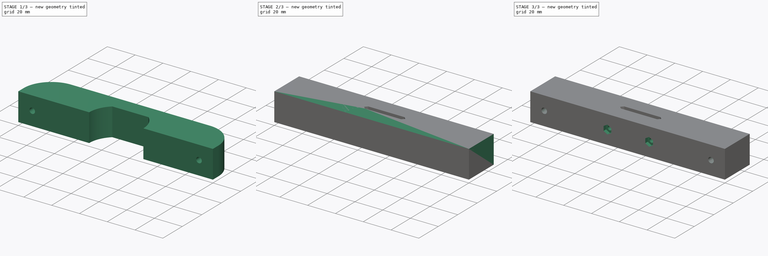
[diagram: build sequence overview — one tinted view per stage of 3, left to right]
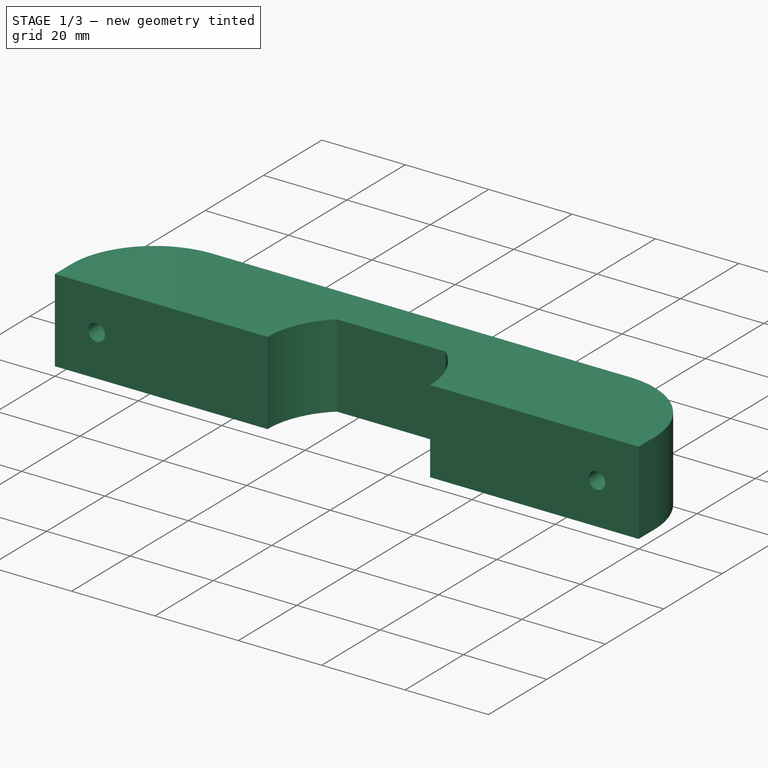
[diagram: stage 1 of 3 — iso view after this stage's code; geometry added in this stage tinted green]
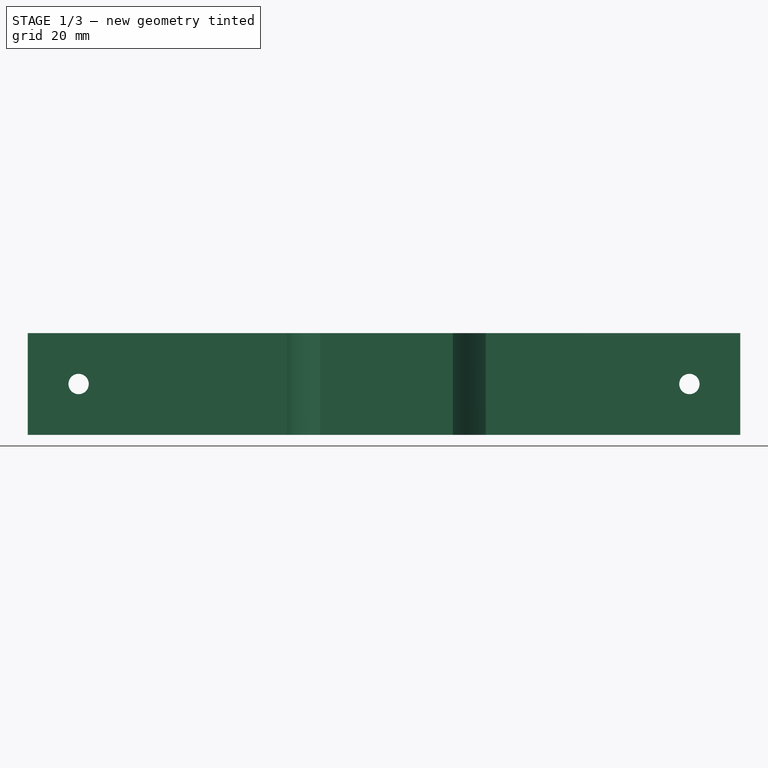
[diagram: stage 1 of 3 — front view after this stage's code; geometry added in this stage tinted green]
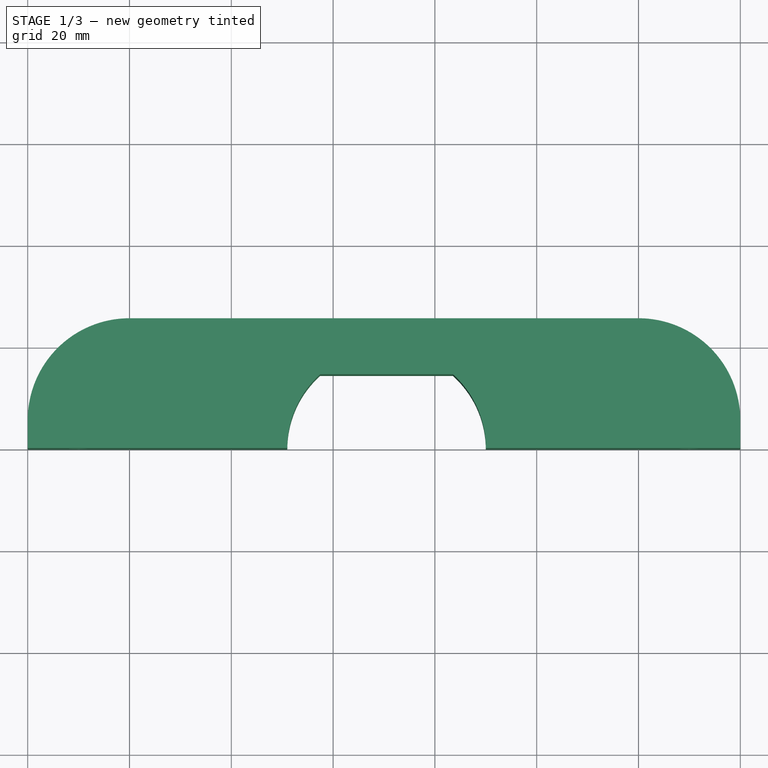
[diagram: stage 1 of 3 — top view after this stage's code; geometry added in this stage tinted green]
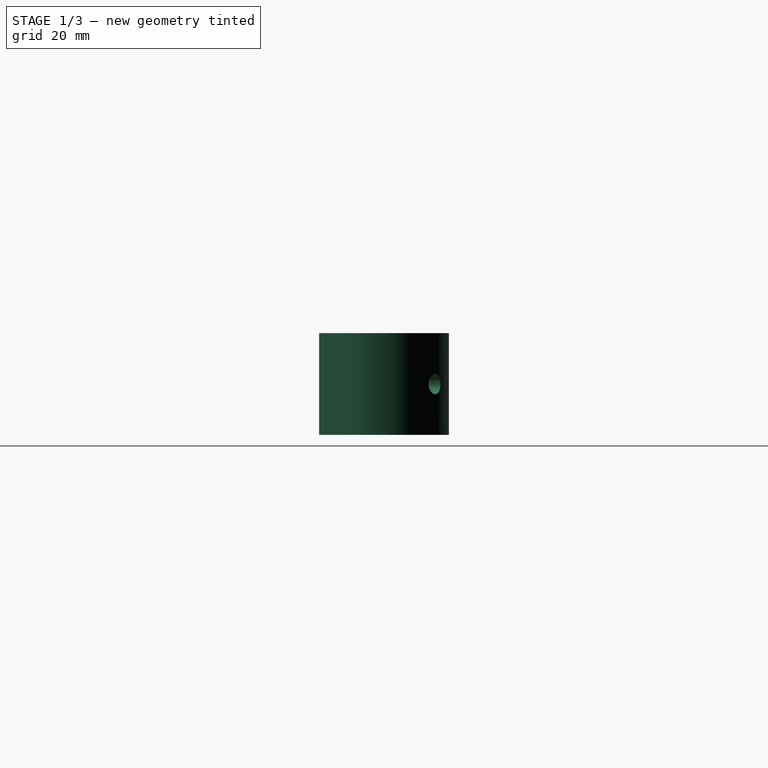
[diagram: stage 1 of 3 — right view after this stage's code; geometry added in this stage tinted green]
FCSTD DOCUMENT  (FreeCAD 0.19R)
Label: motor_mount1
License: All rights reserved
LicenseURL: http://en.wikipedia.org/wiki/All_rights_reserved
objects: Sketcher::SketchObject×7, PartDesign::Pocket×5, PartDesign::Pad×2, PartDesign::Body×2, PartDesign::Fillet×1
note: 24 computed .brp shape members not serialized (recipe doc carries the construction recipe); baked Part::Feature solids carry a one-line shape summary decoded from their .brp

FEATURE [PartDesign::Body] Body
  Group = -> [Sketch,Pad,Sketch001,Pocket,Sketch002,Pocket001,Sketch003,Pocket002]
  Origin = -> Origin
  Placement = pos=(0,-25.5,0) rot=(0,0,1;0rad)
  Tip = -> Pocket002
  expr: .Placement.Base.y = -Sketch.Constraints.height_a
FEATURE [Sketcher::SketchObject] Sketch004
  MapMode = 5
  Support = -> [XY_Plane001]
  sketch-geometry (8):
    g0: LineSegment StartX=0 StartY=0 StartZ=0 EndX=51 EndY=2.4e-15 EndZ=0
    g1: LineSegment StartX=140 StartY=0 StartZ=0 EndX=140 EndY=25.5 EndZ=0
    g2: LineSegment StartX=140 StartY=25.5 StartZ=0 EndX=0 EndY=25.5 EndZ=0
    g3: LineSegment StartX=0 StartY=25.5 StartZ=0 EndX=0 EndY=0 EndZ=0
    g4: LineSegment StartX=83.5384 StartY=14.5 StartZ=0 EndX=57.4616 EndY=14.5 EndZ=0
    g5: ArcOfCircle CenterX=70.5 CenterY=0 CenterZ=0 NormalX=0 NormalY=0 NormalZ=1 AngleXU=0 Radius=19.5 StartAngle=0 EndAngle=0.838423
    g6: LineSegment StartX=90 StartY=0 StartZ=0 EndX=140 EndY=0 EndZ=0
    g7: ArcOfCircle CenterX=70.5 CenterY=0 CenterZ=0 NormalX=0 NormalY=0 NormalZ=1 AngleXU=0 Radius=19.5 StartAngle=2.30317 EndAngle=3.14159
  constraints (23):
    c: Coincident(g-1,g0)
    c: PointOnObject(g6,g-1)
    c: Coincident(g6,g1)
    c: Vertical(g1)
    c: Coincident(g1,g2)
    c: Horizontal(g2)
    c: Coincident(g2,g3)
    c: Vertical(g3)
    c: Horizontal(g4)
    c: Coincident(g6,g5)
    c: Tangent(g0,g6)
    c: Coincident(g0,g7)
    c: PointOnObject(g5,g-1)
    c: DistanceX(g2,g2) = 140
    c: DistanceX(g6,g6) = 50
    c: DistanceX(g0,g0) = 51
    c: Equal(g5,g7)
    c: Coincident(g5,g4)
    c: Coincident(g7,g4)
    c: Coincident(g5,g7)
    c: DistanceY(g3,g3) = 25.5
    c: DistanceY(g4,g2) = 11
    c: Coincident(g3,g0)
FEATURE [PartDesign::Pad] Pad001
  Length = 20
  Length2 = 100
  Midplane = true
  Profile = -> Sketch004
  Type = 0
FEATURE [PartDesign::Fillet] Fillet
  Base = -> Pad001 [Edge8,Edge5]
  BaseFeature = -> Pad001
  Radius = 20
FEATURE [Sketcher::SketchObject] Sketch005
  MapMode = 5
  Placement = pos=(0,0,0) rot=(1,0,0;1.5708rad)
  Support = -> [XZ_Plane001]
  sketch-geometry (2):
    g0: Circle CenterX=10 CenterY=0 CenterZ=0 NormalX=0 NormalY=0 NormalZ=1 AngleXU=0 Radius=2
    g1: Circle CenterX=130 CenterY=0 CenterZ=0 NormalX=0 NormalY=0 NormalZ=1 AngleXU=0 Radius=2
  constraints (6):
    c: PointOnObject(g0,g-1)
    c: PointOnObject(g1,g-1)
    c: Equal(g0,g1)
    c: Diameter(g0) = 4
    c: DistanceX(g-1,g0) = 10
    c: DistanceX(g-1,g1) = 130
FEATURE [PartDesign::Pocket] Pocket003
  BaseFeature = -> Fillet
  Length = 0
  Length2 = 100
  Profile = -> Sketch005
  Type = 3
  UpToFace = -> Fillet [Face6]
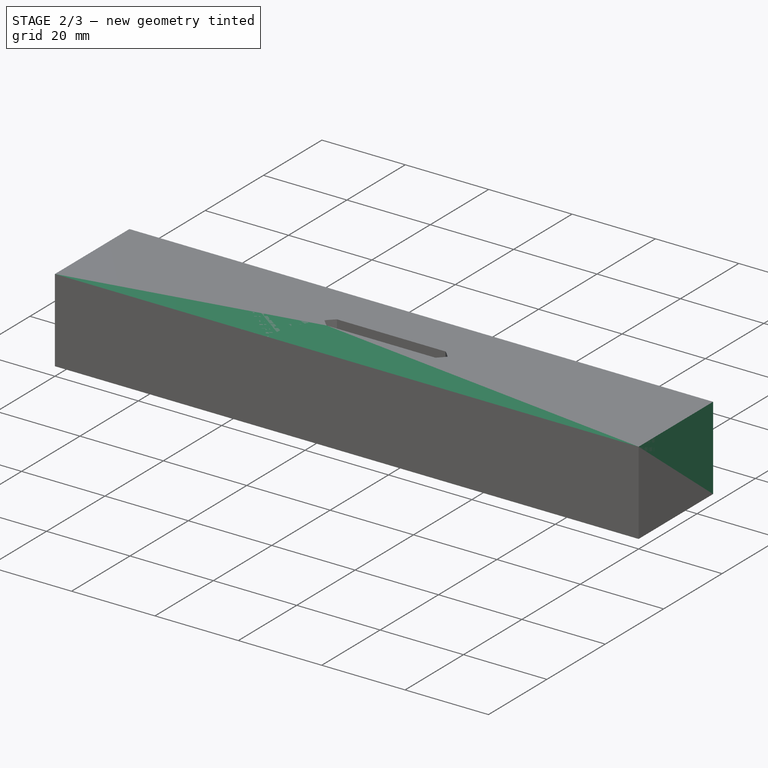
[diagram: stage 2 of 3 — iso view after this stage's code; geometry added in this stage tinted green]
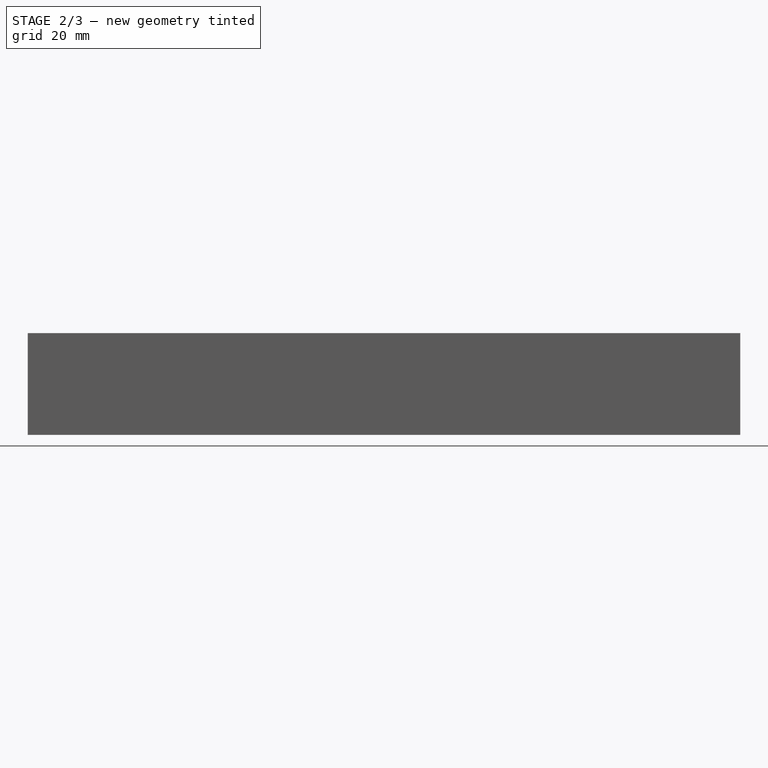
[diagram: stage 2 of 3 — front view after this stage's code; geometry added in this stage tinted green]
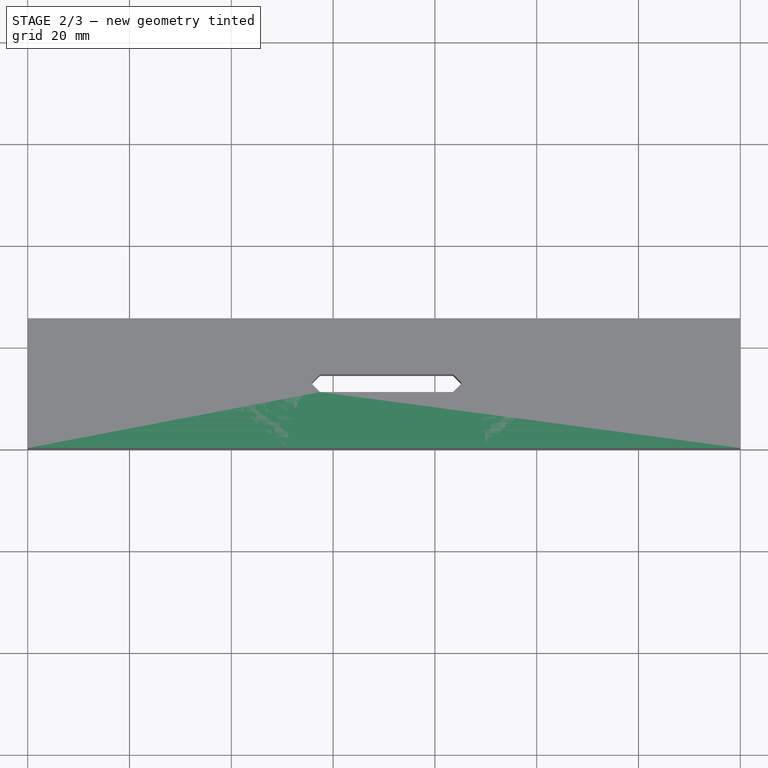
[diagram: stage 2 of 3 — top view after this stage's code; geometry added in this stage tinted green]
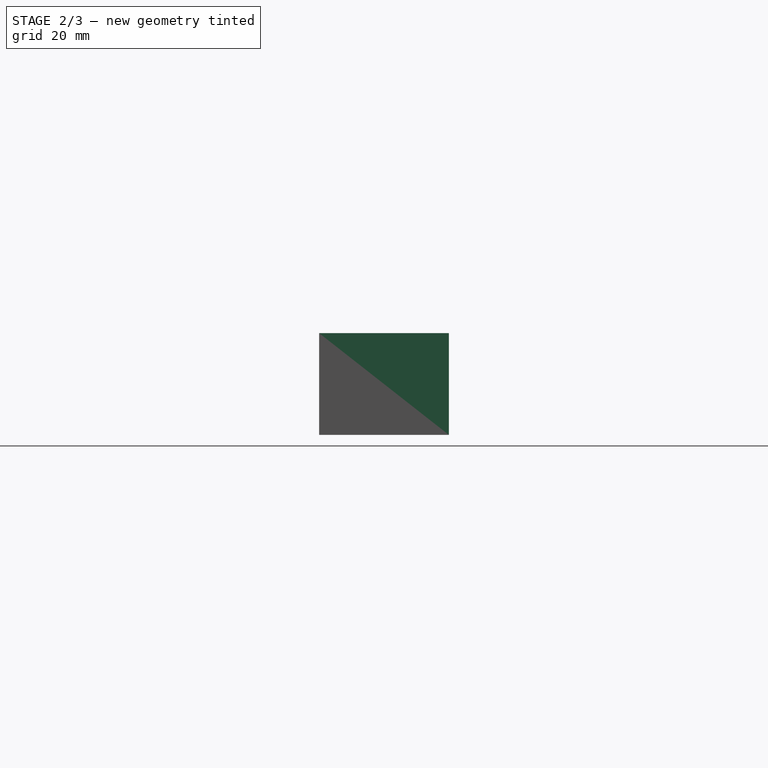
[diagram: stage 2 of 3 — right view after this stage's code; geometry added in this stage tinted green]
FEATURE [Sketcher::SketchObject] Sketch
  MapMode = 5
  Support = -> [XY_Plane]
  sketch-geometry (8):
    g0: LineSegment StartX=0 StartY=0 StartZ=0 EndX=140 EndY=0 EndZ=0
    g1: LineSegment StartX=140 StartY=0 StartZ=0 EndX=140 EndY=25.5 EndZ=0
    g2: LineSegment StartX=140 StartY=25.5 StartZ=0 EndX=90 EndY=25.5 EndZ=0
    g3: LineSegment StartX=51 StartY=25.5 StartZ=0 EndX=0 EndY=25.5 EndZ=0
    g4: LineSegment StartX=0 StartY=25.5 StartZ=0 EndX=0 EndY=0 EndZ=0
    g5: LineSegment StartX=83.5384 StartY=11 StartZ=0 EndX=57.4616 EndY=11 EndZ=0
    g6: ArcOfCircle CenterX=70.5 CenterY=25.5 CenterZ=0 NormalX=0 NormalY=0 NormalZ=1 AngleXU=0 Radius=19.5 StartAngle=3.14159 EndAngle=3.98002
    g7: ArcOfCircle CenterX=70.5 CenterY=25.5 CenterZ=0 NormalX=0 NormalY=0 NormalZ=1 AngleXU=0 Radius=19.5 StartAngle=5.44476 EndAngle=6.28319
  constraints (24):
    c: Coincident(g-1,g0)
    c: Horizontal(g0)
    c: Coincident(g0,g1)
    c: Vertical(g1)
    c: Coincident(g1,g2)
    c: Horizontal(g2)
    c: Horizontal(g3)
    c: Coincident(g3,g4)
    c: Coincident(g4,g0)
    c: Horizontal(g5)
    c: Vertical(g4)
    c: Horizontal(g1,g3)
    c: DistanceX(g0,g0) = 140
    c: Coincident(g6,g3)
    c: Coincident(g7,g2)
    c: Horizontal(g6,g3)
    c: DistanceX(g2,g2) = 50
    c: DistanceX(g3,g3) = 51
    c: DistanceY(g0,g1) = 25.5  'height_a'
    c: Equal(g6,g7)
    c: Coincident(g6,g7)
    c: Coincident(g5,g6)
    c: Coincident(g5,g7)
    c: DistanceY(g0,g5) = 11
FEATURE [PartDesign::Pad] Pad
  Length = 20
  Length2 = 100
  Midplane = true
  Profile = -> Sketch
  Type = 0
FEATURE [Sketcher::SketchObject] Sketch006
  AttachmentOffset = pos=(0,0,0) rot=(0,0,1;3.14159rad)
  MapMode = 5
  Placement = pos=(0,25.5,0) rot=(1,0,0;4.71239rad)
  Support = -> [Pocket003]
  sketch-geometry (2):
    g0: Circle CenterX=10 CenterY=0 CenterZ=0 NormalX=0 NormalY=0 NormalZ=1 AngleXU=0 Radius=3.5
    g1: Circle CenterX=130 CenterY=0 CenterZ=0 NormalX=0 NormalY=0 NormalZ=1 AngleXU=0 Radius=3.5
  constraints (6):
    c: PointOnObject(g0,g-1)
    c: PointOnObject(g1,g-1)
    c: Equal(g0,g1)
    c: Diameter(g0) = 7
    c: DistanceX(g-1,g0) = 10
    c: DistanceX(g-1,g1) = 130
FEATURE [PartDesign::Pocket] Pocket004
  BaseFeature = -> Pocket003
  Length = 18
  Length2 = 100
  Profile = -> Sketch006
  Type = 0
FEATURE [PartDesign::Body] Body001
  Group = -> [Sketch004,Pad001,Fillet,Sketch005,Pocket003,Sketch006,Pocket004]
  Origin = -> Origin001
  Tip = -> Pocket004
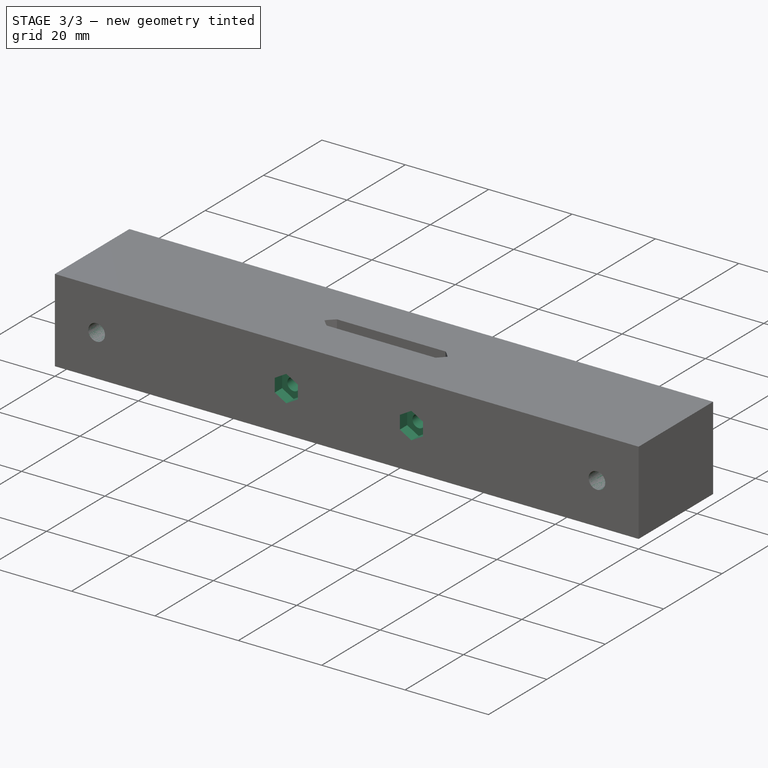
[diagram: stage 3 of 3 — iso view after this stage's code; geometry added in this stage tinted green]
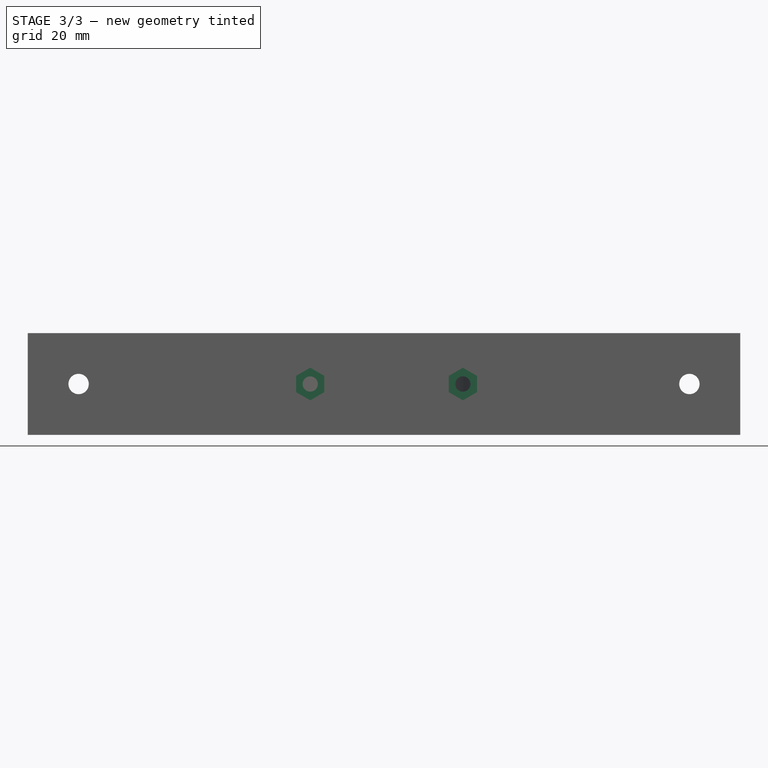
[diagram: stage 3 of 3 — front view after this stage's code; geometry added in this stage tinted green]
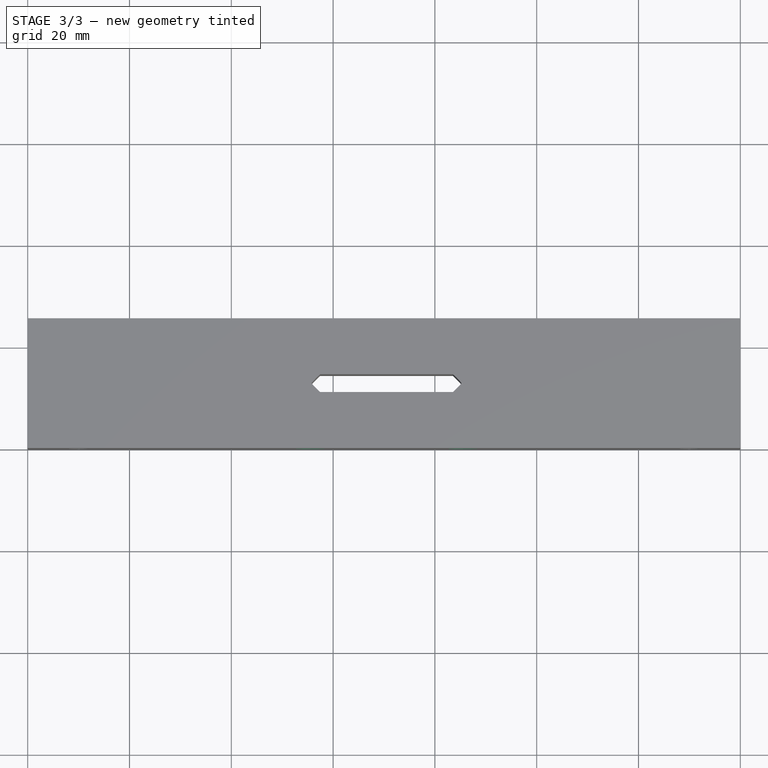
[diagram: stage 3 of 3 — top view after this stage's code; geometry added in this stage tinted green]
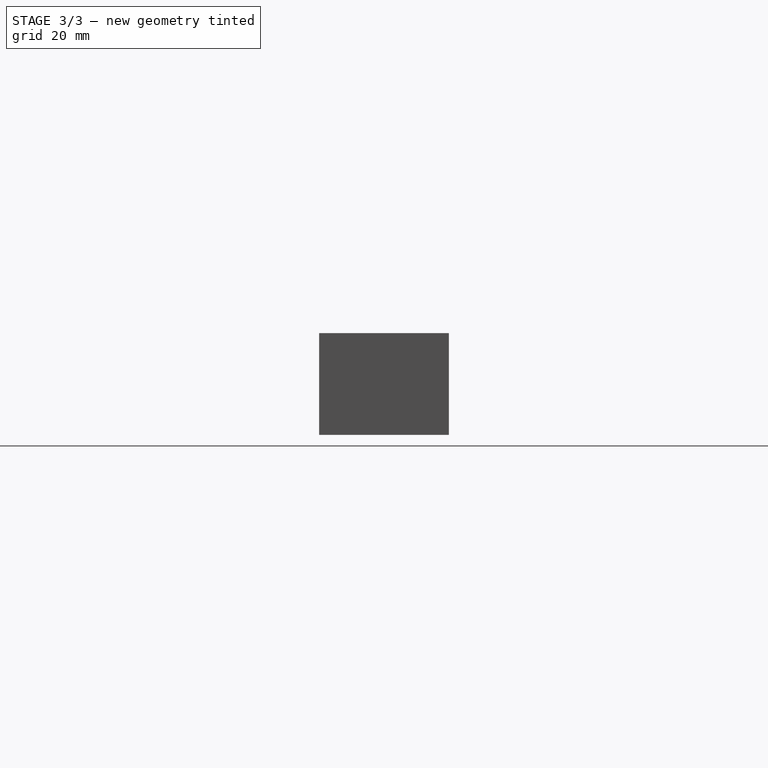
[diagram: stage 3 of 3 — right view after this stage's code; geometry added in this stage tinted green]
FEATURE [Sketcher::SketchObject] Sketch001
  MapMode = 5
  Placement = pos=(0,0,0) rot=(1,0,0;1.5708rad)
  Support = -> [XZ_Plane]
  sketch-geometry (4):
    g0: Circle CenterX=10 CenterY=0 CenterZ=0 NormalX=0 NormalY=0 NormalZ=1 AngleXU=0 Radius=2
    g1: Circle CenterX=130 CenterY=0 CenterZ=0 NormalX=0 NormalY=0 NormalZ=1 AngleXU=0 Radius=2
    g2: Circle CenterX=55.5 CenterY=0 CenterZ=0 NormalX=0 NormalY=0 NormalZ=1 AngleXU=0 Radius=1.5
    g3: Circle CenterX=85.5 CenterY=0 CenterZ=0 NormalX=0 NormalY=0 NormalZ=1 AngleXU=0 Radius=1.5
  constraints (12):
    c: PointOnObject(g0,g-1)
    c: PointOnObject(g1,g-1)
    c: PointOnObject(g2,g-1)
    c: PointOnObject(g3,g-1)
    c: Equal(g0,g1)
    c: Equal(g2,g3)
    c: DistanceX(g-1,g0) = 10
    c: Diameter(g0) = 4
    c: Diameter(g2) = 3
    c: DistanceX(g-1,g1) = 130  'range_c'
    c: DistanceX(g-1,g2) = 55.5  'range_a'
    c: DistanceX(g2,g3) = 30  'range_b'
FEATURE [PartDesign::Pocket] Pocket
  BaseFeature = -> Pad
  Length = 0
  Length2 = 100
  Profile = -> Sketch001
  Type = 3
  UpToFace = -> Pad [Face1]
FEATURE [Sketcher::SketchObject] Sketch002
  MapMode = 5
  Placement = pos=(0,0,0) rot=(1,0,0;1.5708rad)
  Support = -> [XZ_Plane]
  expr: Constraints[38] = Sketch001.Constraints.range_b
  expr: Constraints[37] = Sketch001.Constraints.range_a
  sketch-geometry (14):
    g0: LineSegment StartX=85.5 StartY=-3.2 StartZ=0 EndX=88.2713 EndY=-1.6 EndZ=0
    g1: LineSegment StartX=88.2713 StartY=-1.6 StartZ=0 EndX=88.2713 EndY=1.6 EndZ=0
    g2: LineSegment StartX=88.2713 StartY=1.6 StartZ=0 EndX=85.5 EndY=3.2 EndZ=0
    g3: LineSegment StartX=85.5 StartY=3.2 StartZ=0 EndX=82.7287 EndY=1.6 EndZ=0
    g4: LineSegment StartX=82.7287 StartY=1.6 StartZ=0 EndX=82.7287 EndY=-1.6 EndZ=0
    g5: LineSegment StartX=82.7287 StartY=-1.6 StartZ=0 EndX=85.5 EndY=-3.2 EndZ=0
    g6: Circle [constr] CenterX=85.5 CenterY=0 CenterZ=0 NormalX=0 NormalY=0 NormalZ=1 AngleXU=0 Radius=3.2
    g7: LineSegment StartX=52.7287 StartY=-1.6 StartZ=0 EndX=55.5 EndY=-3.2 EndZ=0
    g8: LineSegment StartX=55.5 StartY=-3.2 StartZ=0 EndX=58.2713 EndY=-1.6 EndZ=0
    g9: LineSegment StartX=58.2713 StartY=-1.6 StartZ=0 EndX=58.2713 EndY=1.6 EndZ=0
    g10: LineSegment StartX=58.2713 StartY=1.6 StartZ=0 EndX=55.5 EndY=3.2 EndZ=0
    g11: LineSegment StartX=55.5 StartY=3.2 StartZ=0 EndX=52.7287 EndY=1.6 EndZ=0
    g12: LineSegment StartX=52.7287 StartY=1.6 StartZ=0 EndX=52.7287 EndY=-1.6 EndZ=0
    g13: Circle [constr] CenterX=55.5 CenterY=0 CenterZ=0 NormalX=0 NormalY=0 NormalZ=1 AngleXU=0 Radius=3.2
  constraints (34):
    c: Coincident(g0,g1)
    c: Coincident(g1,g2)
    c: Coincident(g2,g3)
    c: Coincident(g3,g4)
    c: Coincident(g4,g5)
    c: Coincident(g5,g0)
    c: Equal(g0, g1-g5) x5
    c: PointOnObject(g0,g6)
    c: PointOnObject(g1,g6)
    c: PointOnObject(g2,g6)
    c: PointOnObject(g3,g6)
    c: PointOnObject(g4,g6)
    c: PointOnObject(g5,g6)
    c: PointOnObject(g6,g-1)
    c: Coincident(g7,g8)
    c: Coincident(g8,g9)
    c: Coincident(g9,g10)
    c: Coincident(g10,g11)
    c: Coincident(g11,g12)
    c: Coincident(g12,g7)
    c: Equal(g7, g8-g12) x5
    c: PointOnObject(g7,g13)
    c: PointOnObject(g8,g13)
    c: PointOnObject(g9,g13)
    c: PointOnObject(g10,g13)
    c: PointOnObject(g11,g13)
    c: PointOnObject(g12,g13)
    c: PointOnObject(g13,g-1)
    c: Diameter(g13) = 6.4
    c: DistanceX(g-1,g13) = 55.5
    c: DistanceX(g13,g6) = 30
    c: Parallel(g12,g-2)
    c: Parallel(g4,g-2)
    c: Equal(g13,g6)
FEATURE [PartDesign::Pocket] Pocket001
  BaseFeature = -> Pocket
  Length = 2.5
  Length2 = 100
  Profile = -> Sketch002
  Type = 0
FEATURE [Sketcher::SketchObject] Sketch003
  AttachmentOffset = pos=(0,0,0) rot=(0,0,1;3.14159rad)
  MapMode = 5
  Placement = pos=(0,11,0) rot=(1,0,0;4.71239rad)
  Support = -> [Pocket001]
  expr: Constraints[5] = Sketch001.Constraints.range_b
  expr: Constraints[4] = Sketch001.Constraints.range_a
  sketch-geometry (2):
    g0: Circle CenterX=55.5 CenterY=0 CenterZ=0 NormalX=0 NormalY=0 NormalZ=1 AngleXU=0 Radius=2.75
    g1: Circle CenterX=85.5 CenterY=0 CenterZ=0 NormalX=0 NormalY=0 NormalZ=1 AngleXU=0 Radius=2.75
  constraints (6):
    c: PointOnObject(g0,g-1)
    c: PointOnObject(g1,g-1)
    c: Equal(g0,g1)
    c: Diameter(g0) = 5.5
    c: DistanceX(g-1,g0) = 55.5
    c: DistanceX(g0,g1) = 30
FEATURE [PartDesign::Pocket] Pocket002
  BaseFeature = -> Pocket001
  Length = 3
  Length2 = 10
  Profile = -> Sketch003
  Type = 4
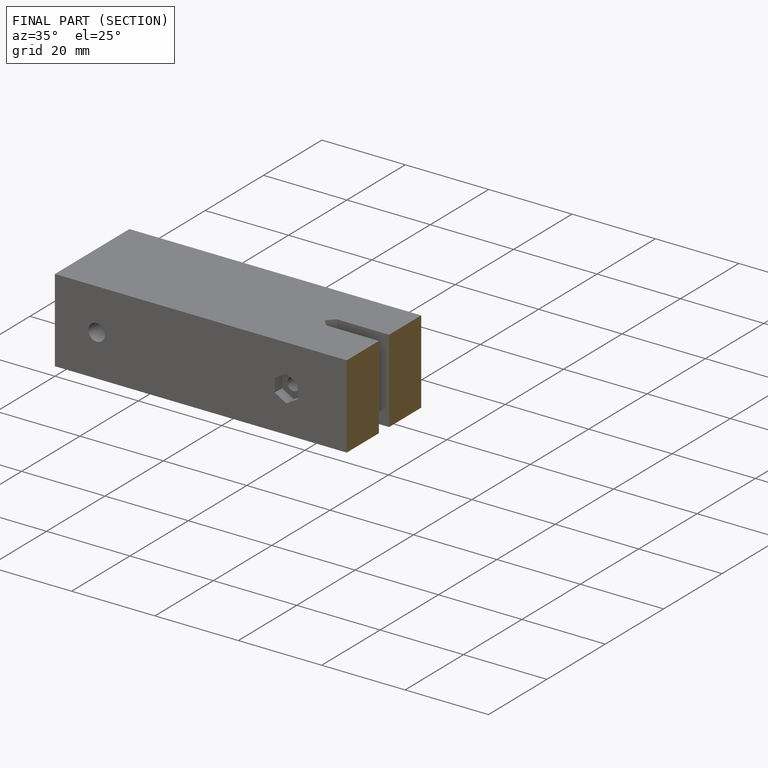
[diagram: finished part — half-section view (interior)]
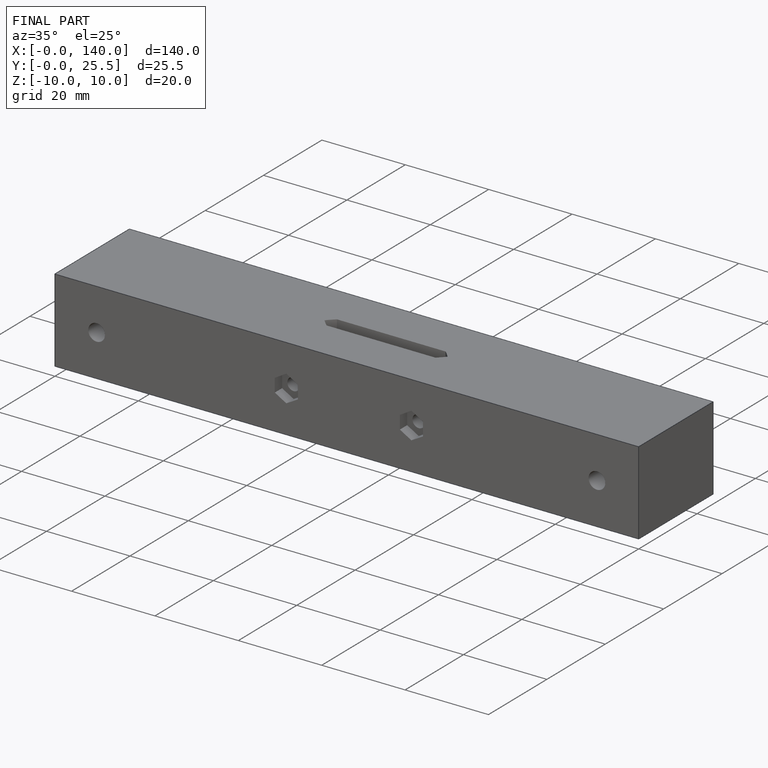
[diagram: finished part — iso view with bounding-box wireframe]
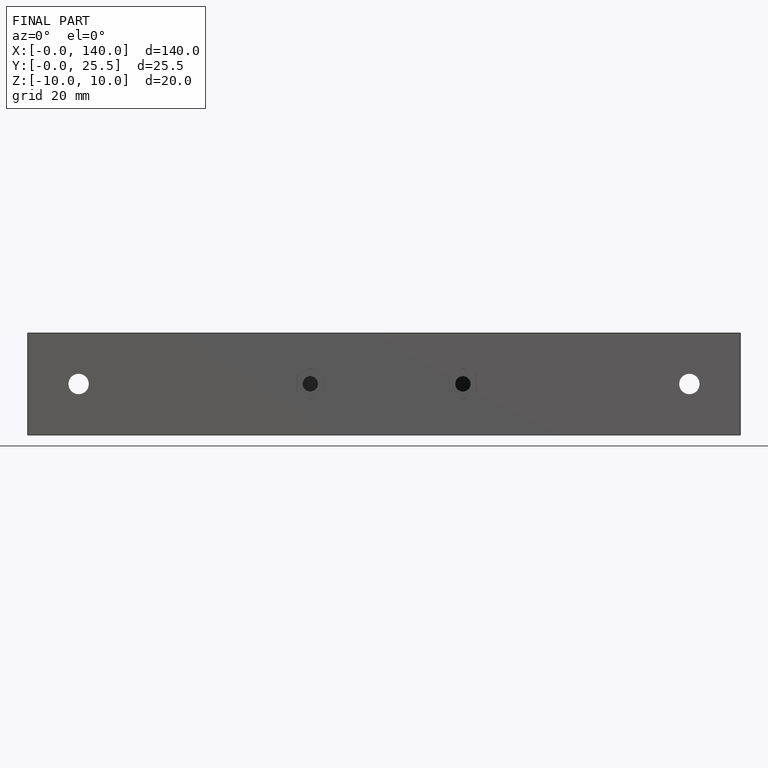
[diagram: finished part — front view with bounding-box wireframe]
